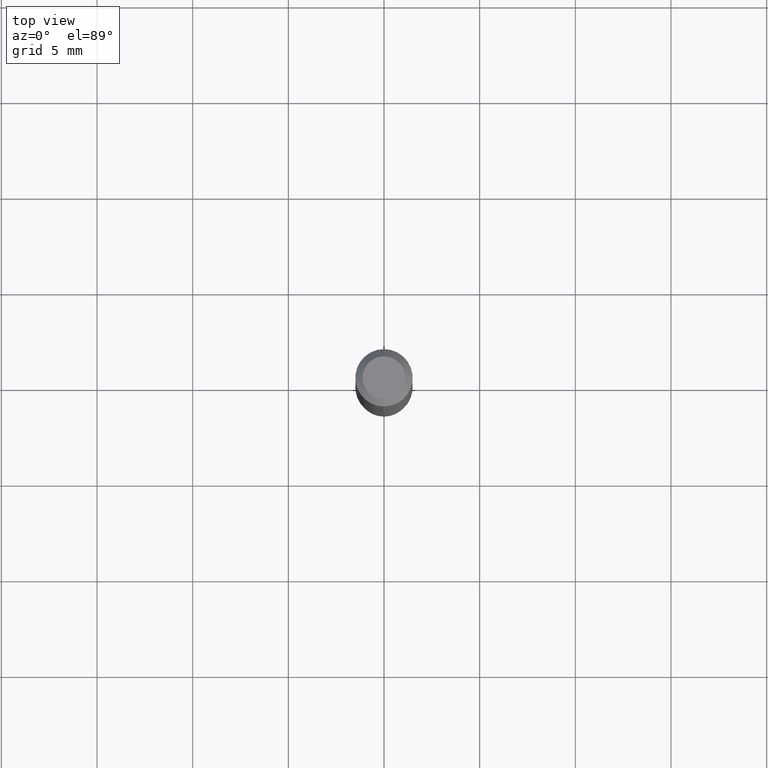
[diagram: clean part render]
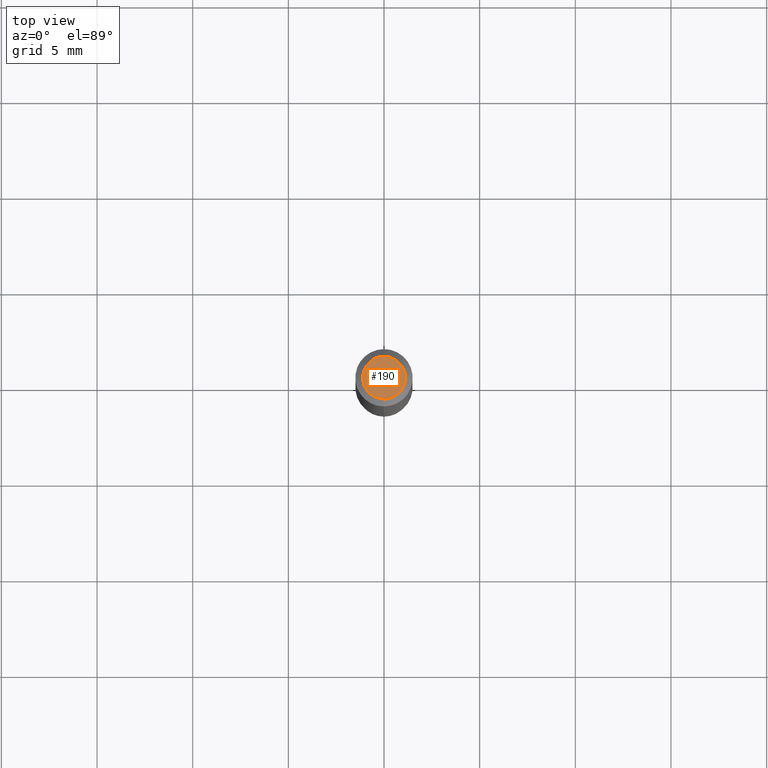
[diagram: same view with one face highlighted and labeled with its STEP entity id]
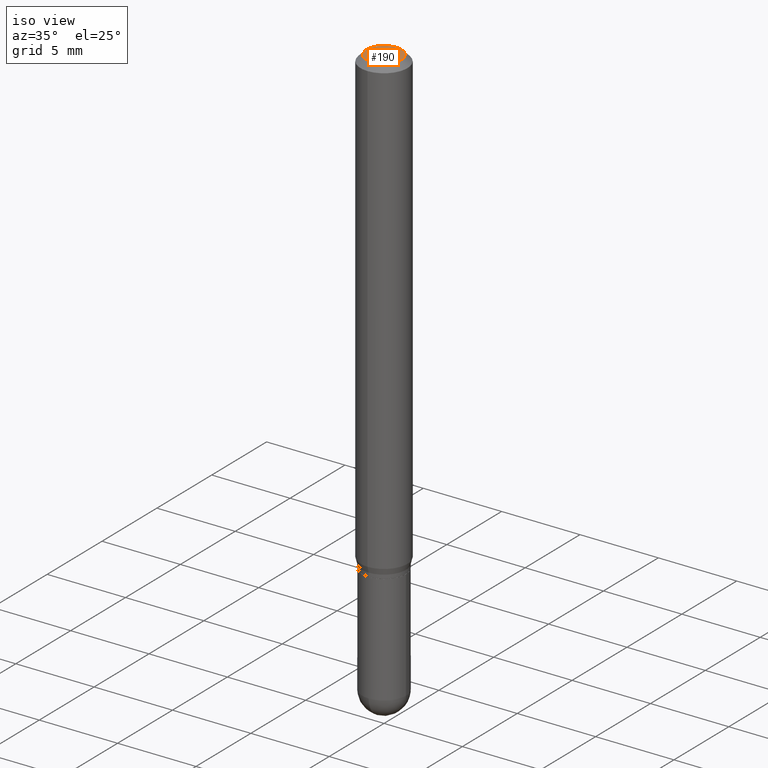
[diagram: same view with one face highlighted and labeled with its STEP entity id]
A machine part, top view. The second image highlights one B-rep face of the part: STEP entity #190.
A second angle (iso view) of the same face is appended — the face is thin or edge-on in the first view.
In plain terms, the highlighted planar face has unit normal (0, -0, -1).
Its self-contained STEP definition (entity closure, byte-faithful):
#14 = PLANE ( 'NONE',  #111 ) ;
#18 = DIRECTION ( 'NONE',  ( -6.982962677686265133E-15, -1.000000000000000000, 3.491533887810517591E-15 ) ) ;
#35 = DIRECTION ( 'NONE',  ( -2.445432111437345549E-29, 3.491533887810517591E-15, 1.000000000000000000 ) ) ;
#50 = CARTESIAN_POINT ( 'NONE',  ( 2.241544163518574248E-45, -3.200427184768119110E-31, -9.166249813416686036E-17 ) ) ;
#64 = DIRECTION ( 'NONE',  ( -6.982962677686265133E-15, -1.000000000000000000, 3.491533887810517591E-15 ) ) ;
#75 = EDGE_CURVE ( 'NONE', #258, #401, #202, .T. ) ;
#85 = AXIS2_PLACEMENT_3D ( 'NONE', #105, #35, #64 ) ;
#91 = CIRCLE ( 'NONE', #443, 0.04404999999999999888 ) ;
#105 = CARTESIAN_POINT ( 'NONE',  ( 2.241544163518574248E-45, -3.200427184768119110E-31, -9.166249813416686036E-17 ) ) ;
#111 = AXIS2_PLACEMENT_3D ( 'NONE', #407, #413, #373 ) ;
#112 = ORIENTED_EDGE ( 'NONE', *, *, #408, .T. ) ;
#190 = ADVANCED_FACE ( 'NONE', ( #486 ), #14, .F. ) ;
#202 = CIRCLE ( 'NONE', #85, 0.04404999999999999888 ) ;
#258 = VERTEX_POINT ( 'NONE', #448 ) ;
#267 = CARTESIAN_POINT ( 'NONE',  ( -3.536586717851222218E-16, -0.04404999999999999888, 6.213956962388643021E-17 ) ) ;
#305 = DIRECTION ( 'NONE',  ( -2.445432111437345549E-29, 3.491533887810517591E-15, 1.000000000000000000 ) ) ;
#373 = DIRECTION ( 'NONE',  ( 6.982962677686265922E-15, 1.000000000000000000, -3.491533887810517197E-15 ) ) ;
#401 = VERTEX_POINT ( 'NONE', #267 ) ;
#407 = CARTESIAN_POINT ( 'NONE',  ( 3.075995059520799729E-16, 0.04404999999999999888, -1.996333168251367392E-16 ) ) ;
#408 = EDGE_CURVE ( 'NONE', #401, #258, #91, .T. ) ;
#413 = DIRECTION ( 'NONE',  ( 2.445432111437345549E-29, -3.491533887810517197E-15, -1.000000000000000000 ) ) ;
#414 = ORIENTED_EDGE ( 'NONE', *, *, #75, .T. ) ;
#443 = AXIS2_PLACEMENT_3D ( 'NONE', #50, #305, #18 ) ;
#448 = CARTESIAN_POINT ( 'NONE',  ( 3.599717260347271507E-16, 0.04404999999999999888, -2.454645658922201879E-16 ) ) ;
#486 = FACE_OUTER_BOUND ( 'NONE', #493, .T. ) ;
#493 = EDGE_LOOP ( 'NONE', ( #414, #112 ) ) ;